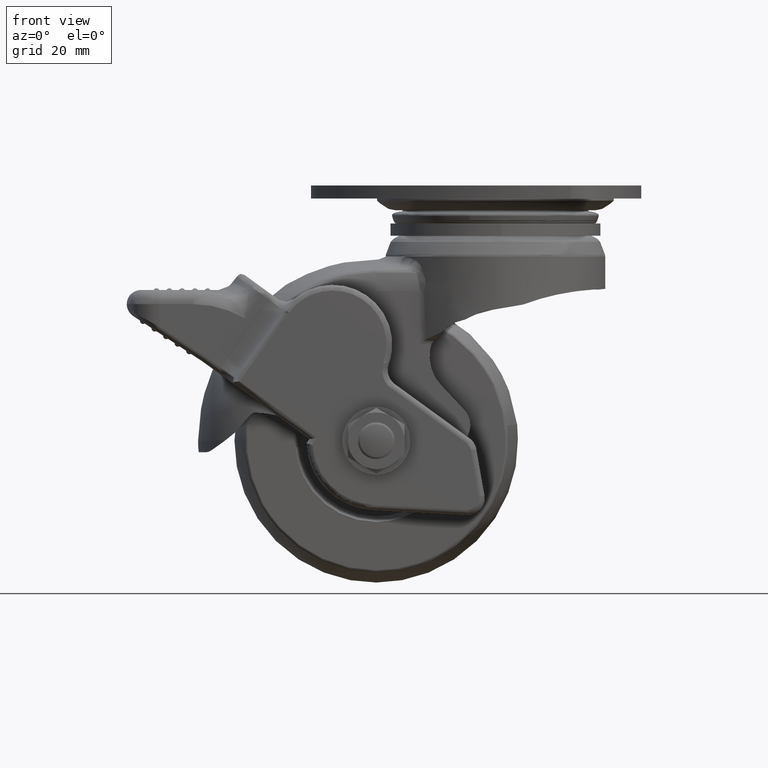
[diagram: clean part render]
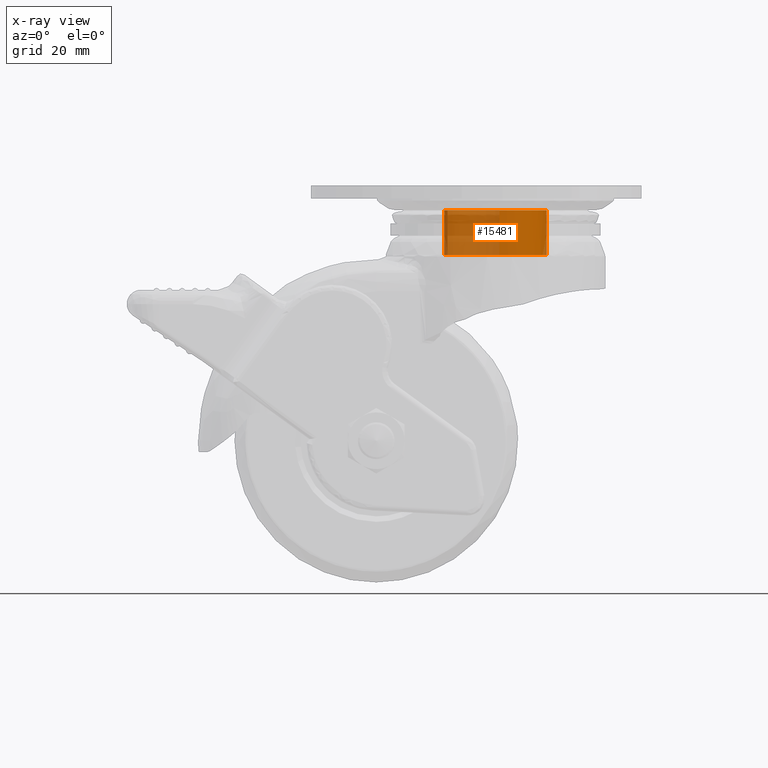
[diagram: x-ray — body ghosted, one internal face saturated and labeled with its STEP entity id]
A machine part, front view, then the same camera in x-ray: the body is ghosted and one INTERNAL B-rep face — a face not visible from any outside direction — is saturated and labeled: STEP entity #15481.
In plain terms, the highlighted face is a freeform B-spline surface patch.
Its self-contained STEP definition (entity closure, byte-faithful):
#15280=CARTESIAN_POINT('',(0.709592456981878,-9.016227036429523,-12.260379159229410));
#15281=VERTEX_POINT('',#15280);
#15282=CARTESIAN_POINT('',(-8.409793307934962,-3.327348485695673,-12.260379159228300));
#15283=VERTEX_POINT('',#15282);
#15299=CARTESIAN_POINT('',(-8.409793307934962,-3.327348485695675,-4.368775000000000));
#15300=VERTEX_POINT('',#15299);
#15301=CARTESIAN_POINT('',(-8.409793307934962,-3.327348485695673,-12.260379159228300));
#15302=CARTESIAN_POINT('',(-8.409793307934962,-3.327348485695675,-4.368775000000000));
#15303=QUASI_UNIFORM_CURVE('',1,(#15301,#15302),.UNSPECIFIED.,.F.,.U.);
#15304=EDGE_CURVE('',#15283,#15300,#15303,.T.);
#15306=CARTESIAN_POINT('',(0.709592456980120,-9.016227036429699,-4.368775000000000));
#15307=VERTEX_POINT('',#15306);
#15323=CARTESIAN_POINT('',(0.709592456981878,-9.016227036429523,-12.260379159229410));
#15324=CARTESIAN_POINT('',(0.709592456980120,-9.016227036429699,-4.368775000000000));
#15325=QUASI_UNIFORM_CURVE('',1,(#15323,#15324),.UNSPECIFIED.,.F.,.U.);
#15326=EDGE_CURVE('',#15281,#15307,#15325,.T.);
#15331=CARTESIAN_POINT('',(0.709592456885878,-9.016227036437115,-12.457669263574370));
#15332=CARTESIAN_POINT('',(9.725819493322993,-8.306634579551238,-12.457669263574367));
#15333=CARTESIAN_POINT('',(9.016227036437115,0.709592456885878,-12.457669263574370));
#15334=CARTESIAN_POINT('',(8.306634579551238,9.725819493322993,-12.457669263574367));
#15335=CARTESIAN_POINT('',(-0.709592456885878,9.016227036437115,-12.457669263574370));
#15336=CARTESIAN_POINT('',(-9.725819493322993,8.306634579551238,-12.457669263574367));
#15337=CARTESIAN_POINT('',(-9.016227036437115,-0.709592456885878,-12.457669263574370));
#15338=CARTESIAN_POINT('',(-8.909631273590124,-2.064020043628468,-12.457669263574370));
#15339=CARTESIAN_POINT('',(-8.409793307943078,-3.327348485675155,-12.457669263574365));
#15340=CARTESIAN_POINT('',(0.709592456885878,-9.016227036437115,-4.166552643410642));
#15341=CARTESIAN_POINT('',(9.725819493322993,-8.306634579551238,-4.166552643410642));
#15342=CARTESIAN_POINT('',(9.016227036437115,0.709592456885878,-4.166552643410642));
#15343=CARTESIAN_POINT('',(8.306634579551238,9.725819493322993,-4.166552643410642));
#15344=CARTESIAN_POINT('',(-0.709592456885878,9.016227036437115,-4.166552643410642));
#15345=CARTESIAN_POINT('',(-9.725819493322993,8.306634579551238,-4.166552643410642));
#15346=CARTESIAN_POINT('',(-9.016227036437115,-0.709592456885878,-4.166552643410642));
#15347=CARTESIAN_POINT('',(-8.909631273590124,-2.064020043628468,-4.166552643410641));
#15348=CARTESIAN_POINT('',(-8.409793307943078,-3.327348485675155,-4.166552643410641));
#15356=(BOUNDED_SURFACE()B_SPLINE_SURFACE(2,1,((#15331,#15340),(#15332,#15341),(#15333,#15342),(#15334,#15343),(#15335,#15344),(#15336,#15345),(#15337,#15346),(#15338,#15347),(#15339,#15348)),.UNSPECIFIED.,.F.,.F.,.U.)B_SPLINE_SURFACE_WITH_KNOTS((3,2,2,2,3),(2,2),(0.0,14.984767115813780,29.969534231627549,44.954301347441330,47.951254770604088),(0.0,8.291116620163727),.UNSPECIFIED.)GEOMETRIC_REPRESENTATION_ITEM()RATIONAL_B_SPLINE_SURFACE(((1.0,1.0),(0.707106781186548,0.707106781186548),(1.0,1.0),(0.707106781186548,0.707106781186548),(1.0,1.0),(0.707106781186548,0.707106781186548),(1.0,1.0),(0.941421356237310,0.941421356237310),(0.906274169979695,0.906274169979695)))REPRESENTATION_ITEM('')SURFACE());
#15357=CARTESIAN_POINT('',(-9.044106999999999,0.0,-12.260379159228300));
#15358=VERTEX_POINT('',#15357);
#15359=CARTESIAN_POINT('',(-8.409793307934962,-3.327348485695673,-12.260379159228304));
#15360=CARTESIAN_POINT('',(-9.044106999999999,-1.724135877952634,-12.260379159228306));
#15361=CARTESIAN_POINT('',(-9.044106999999999,0.0,-12.260379159228300));
#15369=(BOUNDED_CURVE()B_SPLINE_CURVE(2,(#15359,#15360,#15361),.UNSPECIFIED.,.F.,.U.)B_SPLINE_CURVE_WITH_KNOTS((3,3),(0.437532549938694,0.500000000000000),.UNSPECIFIED.)CURVE()GEOMETRIC_REPRESENTATION_ITEM()RATIONAL_B_SPLINE_CURVE((0.890203187500458,0.926814829921902,1.0))REPRESENTATION_ITEM(''));
#15370=EDGE_CURVE('',#15283,#15358,#15369,.T.);
#15371=ORIENTED_EDGE('',*,*,#15370,.T.);
#15372=CARTESIAN_POINT('',(0.630674988849290,9.022090693729968,-12.260379159575310));
#15373=VERTEX_POINT('',#15372);
#15374=CARTESIAN_POINT('',(-9.044106999999999,0.0,-12.260379159228300));
#15375=CARTESIAN_POINT('',(-9.044106999999999,9.044106999999999,-12.260379159228300));
#15376=CARTESIAN_POINT('',(0.0,9.044106999999999,-12.260379159228300));
#15377=CARTESIAN_POINT('',(0.315721779389887,9.044106999999999,-12.260379159228304));
#15378=CARTESIAN_POINT('',(0.630674988849290,9.022090693729968,-12.260379159575312));
#15386=(BOUNDED_CURVE()B_SPLINE_CURVE(2,(#15374,#15375,#15376,#15377,#15378),.UNSPECIFIED.,.F.,.U.)B_SPLINE_CURVE_WITH_KNOTS((3,2,3),(0.500000000000000,0.750000000000000,0.762166313470320),.UNSPECIFIED.)CURVE()GEOMETRIC_REPRESENTATION_ITEM()RATIONAL_B_SPLINE_CURVE((1.0,0.707106781186548,1.0,0.985746277146338,0.972879876375530))REPRESENTATION_ITEM(''));
#15387=EDGE_CURVE('',#15358,#15373,#15386,.T.);
#15388=ORIENTED_EDGE('',*,*,#15387,.T.);
#15389=CARTESIAN_POINT('',(9.044106999999999,0.0,-12.260379159228300));
#15390=VERTEX_POINT('',#15389);
#15391=CARTESIAN_POINT('',(0.630674988849290,9.022090693729968,-12.260379159575312));
#15392=CARTESIAN_POINT('',(9.044107000000000,8.433963027853819,-12.260379159228300));
#15393=CARTESIAN_POINT('',(9.044106999999999,0.0,-12.260379159228300));
#15401=(BOUNDED_CURVE()B_SPLINE_CURVE(2,(#15391,#15392,#15393),.UNSPECIFIED.,.F.,.U.)B_SPLINE_CURVE_WITH_KNOTS((3,3),(0.762166313470320,1.0),.UNSPECIFIED.)CURVE()GEOMETRIC_REPRESENTATION_ITEM()RATIONAL_B_SPLINE_CURVE((0.972879876375530,0.721360504040210,1.0))REPRESENTATION_ITEM(''));
#15402=EDGE_CURVE('',#15373,#15390,#15401,.T.);
#15403=ORIENTED_EDGE('',*,*,#15402,.T.);
#15404=CARTESIAN_POINT('',(9.043392915330731,-0.113648609296019,-12.260379159584749));
#15405=VERTEX_POINT('',#15404);
#15406=CARTESIAN_POINT('',(9.044106999999999,0.0,-12.260379159228300));
#15407=CARTESIAN_POINT('',(9.044106999999999,-0.056826548053039,-12.260379159228304));
#15408=CARTESIAN_POINT('',(9.043392915330731,-0.113648609296019,-12.260379159584746));
#15416=(BOUNDED_CURVE()B_SPLINE_CURVE(2,(#15406,#15407,#15408),.UNSPECIFIED.,.F.,.U.)B_SPLINE_CURVE_WITH_KNOTS((3,3),(0.0,0.002215704079233),.UNSPECIFIED.)CURVE()GEOMETRIC_REPRESENTATION_ITEM()RATIONAL_B_SPLINE_CURVE((1.0,0.997404141201181,0.994854295641800))REPRESENTATION_ITEM(''));
#15417=EDGE_CURVE('',#15390,#15405,#15416,.T.);
#15418=ORIENTED_EDGE('',*,*,#15417,.T.);
#15419=CARTESIAN_POINT('',(9.043392915330731,-0.113648609296019,-12.260379159584746));
#15420=CARTESIAN_POINT('',(8.939653842731081,-8.368507157921505,-12.260379159255264));
#15421=CARTESIAN_POINT('',(0.709592456981878,-9.016227036429523,-12.260379159229409));
#15429=(BOUNDED_CURVE()B_SPLINE_CURVE(2,(#15419,#15420,#15421),.UNSPECIFIED.,.F.,.U.)B_SPLINE_CURVE_WITH_KNOTS((3,3),(0.002215704079233,0.236331300629116),.UNSPECIFIED.)CURVE()GEOMETRIC_REPRESENTATION_ITEM()RATIONAL_B_SPLINE_CURVE((0.994854295641800,0.725432661300050,0.969723356164197))REPRESENTATION_ITEM(''));
#15430=EDGE_CURVE('',#15405,#15281,#15429,.T.);
#15431=ORIENTED_EDGE('',*,*,#15430,.T.);
#15432=ORIENTED_EDGE('',*,*,#15326,.T.);
#15433=CARTESIAN_POINT('',(9.044106999999999,0.0,-4.368775000000000));
#15434=VERTEX_POINT('',#15433);
#15435=CARTESIAN_POINT('',(9.044106999999999,0.0,-4.368775000000000));
#15436=CARTESIAN_POINT('',(9.044106999999997,-8.360286516164070,-4.368775000000000));
#15437=CARTESIAN_POINT('',(0.709592456980120,-9.016227036429699,-4.368775000000000));
#15445=(BOUNDED_CURVE()B_SPLINE_CURVE(2,(#15435,#15436,#15437),.UNSPECIFIED.,.F.,.U.)B_SPLINE_CURVE_WITH_KNOTS((3,3),(0.500000000000000,0.736331300629182),.UNSPECIFIED.)CURVE()GEOMETRIC_REPRESENTATION_ITEM()RATIONAL_B_SPLINE_CURVE((1.0,0.723120658609396,0.969723356164335))REPRESENTATION_ITEM(''));
#15446=EDGE_CURVE('',#15434,#15307,#15445,.T.);
#15447=ORIENTED_EDGE('',*,*,#15446,.F.);
#15448=CARTESIAN_POINT('',(-9.044106999999999,0.0,-4.368775000000000));
#15449=VERTEX_POINT('',#15448);
#15450=CARTESIAN_POINT('',(-9.044106999999999,0.0,-4.368775000000000));
#15451=CARTESIAN_POINT('',(-9.044106999999999,9.044106999999999,-4.368774999999999));
#15452=CARTESIAN_POINT('',(0.0,9.044106999999999,-4.368775000000000));
#15453=CARTESIAN_POINT('',(9.044106999999999,9.044106999999999,-4.368774999999999));
#15454=CARTESIAN_POINT('',(9.044106999999999,0.0,-4.368775000000000));
#15462=(BOUNDED_CURVE()B_SPLINE_CURVE(2,(#15450,#15451,#15452,#15453,#15454),.UNSPECIFIED.,.F.,.U.)B_SPLINE_CURVE_WITH_KNOTS((3,2,3),(0.0,0.250000000000000,0.500000000000000),.UNSPECIFIED.)CURVE()GEOMETRIC_REPRESENTATION_ITEM()RATIONAL_B_SPLINE_CURVE((1.0,0.707106781186548,1.0,0.707106781186548,1.0))REPRESENTATION_ITEM(''));
#15463=EDGE_CURVE('',#15449,#15434,#15462,.T.);
#15464=ORIENTED_EDGE('',*,*,#15463,.F.);
#15465=CARTESIAN_POINT('',(-8.409793307934962,-3.327348485695675,-4.368775000000000));
#15466=CARTESIAN_POINT('',(-9.044106999999999,-1.724135877952637,-4.368775000000000));
#15467=CARTESIAN_POINT('',(-9.044106999999999,0.0,-4.368775000000000));
#15475=(BOUNDED_CURVE()B_SPLINE_CURVE(2,(#15465,#15466,#15467),.UNSPECIFIED.,.F.,.U.)B_SPLINE_CURVE_WITH_KNOTS((3,3),(0.937532549938694,1.0),.UNSPECIFIED.)CURVE()GEOMETRIC_REPRESENTATION_ITEM()RATIONAL_B_SPLINE_CURVE((0.890203187500458,0.926814829921902,1.0))REPRESENTATION_ITEM(''));
#15476=EDGE_CURVE('',#15300,#15449,#15475,.T.);
#15477=ORIENTED_EDGE('',*,*,#15476,.F.);
#15478=ORIENTED_EDGE('',*,*,#15304,.F.);
#15479=EDGE_LOOP('',(#15371,#15388,#15403,#15418,#15431,#15432,#15447,#15464,#15477,#15478));
#15480=FACE_OUTER_BOUND('',#15479,.T.);
#15481=ADVANCED_FACE('',(#15480),#15356,.F.);